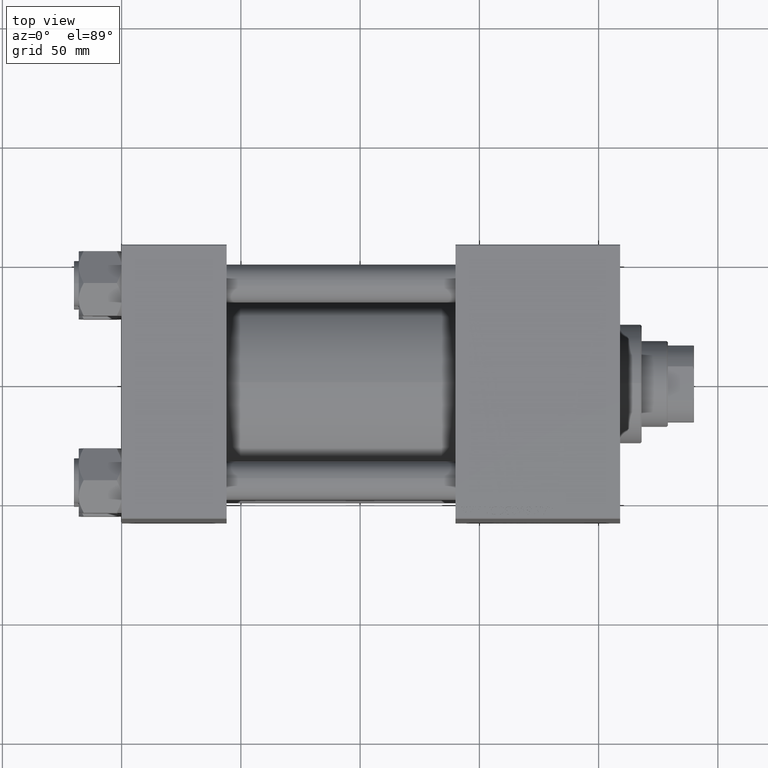
[diagram: clean part render]
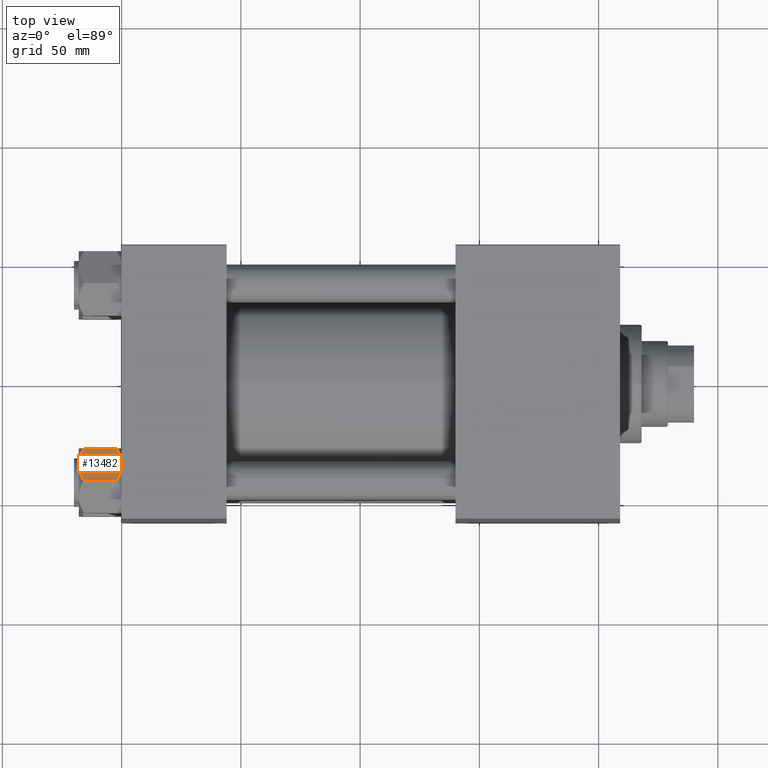
[diagram: same view with one face highlighted and labeled with its STEP entity id]
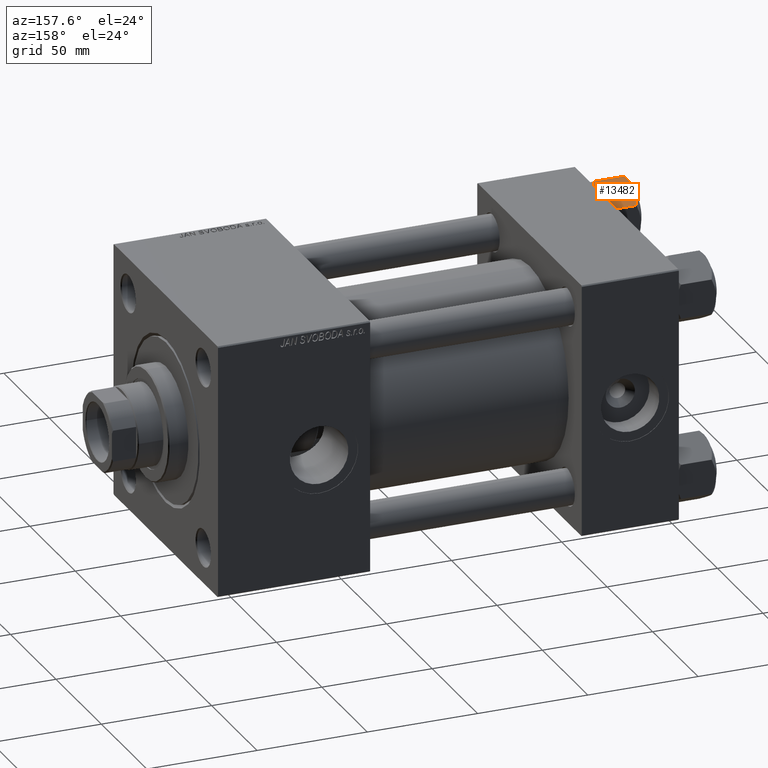
[diagram: same view with one face highlighted and labeled with its STEP entity id]
A machine part, top view. The second image highlights one B-rep face of the part: STEP entity #13482.
A second angle (auxiliary view) of the same face is appended — the face is thin or edge-on in the first view.
In plain terms, the highlighted planar face has unit normal (-0, -0.5, -0.866).
Its self-contained STEP definition (entity closure, byte-faithful):
#655 = ORIENTED_EDGE ( 'NONE', *, *, #21450, .F. ) ;
#1253 = LINE ( 'NONE', #49945, #50445 ) ;
#2468 = CARTESIAN_POINT ( 'NONE',  ( -11.38181071908714515, -7.340759166634855504, -17.99999999999998934 ) ) ;
#2630 = CARTESIAN_POINT ( 'NONE',  ( -7.809999999999999609, -13.52731680711293727, -18.00000000000000000 ) ) ;
#3428 = CARTESIAN_POINT ( 'NONE',  ( -9.124083218049237942, -11.25125790807803838, -0.9473872146228101698 ) ) ;
#3956 = EDGE_CURVE ( 'NONE', #35294, #18937, #33628, .T. ) ;
#3975 = VERTEX_POINT ( 'NONE', #37549 ) ;
#4791 = CARTESIAN_POINT ( 'NONE',  ( -11.71499999999999986, -6.763658403556454424, -18.00000000000000000 ) ) ;
#4845 = ORIENTED_EDGE ( 'NONE', *, *, #18324, .F. ) ;
#5882 = DIRECTION ( 'NONE',  ( -0.4999999999999994449, 0.8660254037844390407, 0.000000000000000000 ) ) ;
#6389 = CARTESIAN_POINT ( 'NONE',  ( -7.903528262322684128, -13.36532110482641400, -16.00000000000000000 ) ) ;
#6549 = CARTESIAN_POINT ( 'NONE',  ( -12.38621571200405391, -5.601078687526916511, -0.05089381635300645190 ) ) ;
#7335 = CARTESIAN_POINT ( 'NONE',  ( -9.439480280627259745, -10.70497417113492311, -0.7317196846281081024 ) ) ;
#7469 = ORIENTED_EDGE ( 'NONE', *, *, #37962, .F. ) ;
#10190 = DIRECTION ( 'NONE',  ( 0.4999999999999994449, -0.8660254037844390407, 0.000000000000000000 ) ) ;
#10367 = LINE ( 'NONE', #41812, #40959 ) ;
#11180 = DIRECTION ( 'NONE',  ( 0.8660254037844390407, 0.4999999999999994449, 0.000000000000000000 ) ) ;
#11513 = CARTESIAN_POINT ( 'NONE',  ( -8.202637790192643052, -12.84724820552771085, -1.706311779141444829 ) ) ;
#12688 = CARTESIAN_POINT ( 'NONE',  ( -15.61999999999999567, 8.023367828467702033E-15, -1.999999999999998224 ) ) ;
#13482 = ADVANCED_FACE ( 'NONE', ( #51010 ), #18243, .F. ) ;
#13870 = CARTESIAN_POINT ( 'NONE',  ( -14.92760668674625002, -1.199260397376427090, -1.411989271640064825 ) ) ;
#14090 = VECTOR ( 'NONE', #10190, 999.9999999999998863 ) ;
#14131 = CARTESIAN_POINT ( 'NONE',  ( -14.31545111198821552, -2.259544954993873311, -0.9142282604026915616 ) ) ;
#14746 = CARTESIAN_POINT ( 'NONE',  ( -10.38662926516872709, -9.064464007571841009, -17.75691532989870325 ) ) ;
#15434 = CARTESIAN_POINT ( 'NONE',  ( -7.903528262322684128, -13.36532110482641400, -16.00000000000000000 ) ) ;
#17647 = CARTESIAN_POINT ( 'NONE',  ( -8.502393313253762130, -12.32805640973646710, -16.58801072835992585 ) ) ;
#17896 = CARTESIAN_POINT ( 'NONE',  ( -11.71499999999999986, -6.763658403556454424, -18.00000000000000000 ) ) ;
#17982 = VECTOR ( 'NONE', #49761, 1000.000000000000000 ) ;
#18033 = CARTESIAN_POINT ( 'NONE',  ( -7.809999999999999609, -13.52731680711293727, -1.999999999999998224 ) ) ;
#18243 = PLANE ( 'NONE',  #27715 ) ;
#18299 = LINE ( 'NONE', #2630, #17982 ) ;
#18324 = EDGE_CURVE ( 'NONE', #18937, #31225, #1253, .T. ) ;
#18937 = VERTEX_POINT ( 'NONE', #42932 ) ;
#19379 = CARTESIAN_POINT ( 'NONE',  ( -8.506059550806618574, -12.32170630002230816, -1.434462921875002461 ) ) ;
#20445 = ORIENTED_EDGE ( 'NONE', *, *, #26577, .T. ) ;
#20492 = CARTESIAN_POINT ( 'NONE',  ( -13.02784502466562699, -4.489744118371577386, -17.80281335400754017 ) ) ;
#20497 = VERTEX_POINT ( 'NONE', #23716 ) ;
#20637 = VERTEX_POINT ( 'NONE', #30450 ) ;
#21066 = ORIENTED_EDGE ( 'NONE', *, *, #27669, .F. ) ;
#21450 = EDGE_CURVE ( 'NONE', #35751, #20497, #30007, .T. ) ;
#21576 = CARTESIAN_POINT ( 'NONE',  ( -10.06459418565413166, -9.622245127110597096, -17.61639331488793303 ) ) ;
#22079 = ORIENTED_EDGE ( 'NONE', *, *, #27942, .F. ) ;
#22094 = CARTESIAN_POINT ( 'NONE',  ( -11.04378428799595291, -7.926238119585994113, -17.94910618364698252 ) ) ;
#22286 = CARTESIAN_POINT ( 'NONE',  ( -14.92394044919338292, -1.205610507090625561, -16.56553707812498999 ) ) ;
#22784 = CARTESIAN_POINT ( 'NONE',  ( -13.36540581434588226, -3.905071680002305534, -0.3836066851120543686 ) ) ;
#23307 = CARTESIAN_POINT ( 'NONE',  ( -10.40215497533437805, -9.037572688741340343, -0.1971866459924474513 ) ) ;
#23716 = CARTESIAN_POINT ( 'NONE',  ( -7.809999999999999609, -13.52731680711293727, -1.999999999999998224 ) ) ;
#25452 = CARTESIAN_POINT ( 'NONE',  ( -14.30591678195075467, -2.276058899034888672, -17.05261278537718539 ) ) ;
#25766 = CARTESIAN_POINT ( 'NONE',  ( -7.809999999999999609, -13.52731680711293727, -16.00000000000000000 ) ) ;
#26060 = ORIENTED_EDGE ( 'NONE', *, *, #3956, .F. ) ;
#26345 = B_SPLINE_CURVE_WITH_KNOTS ( 'NONE', 3,
 ( #6389, #17647, #46456, #21576, #14746, #22094, #2468, #45427 ),
 .UNSPECIFIED., .F., .F.,
 ( 4, 2, 2, 4 ),
 ( 4.472842641823326580E-07, 0.003945636373369299649, 0.005918230917921855731, 0.007890825462474411814 ),
 .UNSPECIFIED. ) ;
#26577 = EDGE_CURVE ( 'NONE', #3975, #20497, #18299, .T. ) ;
#26870 = EDGE_LOOP ( 'NONE', ( #37298, #20445, #655, #22079, #21066, #7469, #4845, #26060, #40664, #41958 ) ) ;
#27498 = CARTESIAN_POINT ( 'NONE',  ( -7.903528262322674358, -13.36532110482643354, -2.000000000000000000 ) ) ;
#27669 = EDGE_CURVE ( 'NONE', #40573, #20637, #43959, .T. ) ;
#27673 = CARTESIAN_POINT ( 'NONE',  ( -15.52647173767732980, -0.1619957022864788043, -2.000000000000000000 ) ) ;
#27715 = AXIS2_PLACEMENT_3D ( 'NONE', #31109, #11180, #30836 ) ;
#27942 = EDGE_CURVE ( 'NONE', #20637, #35751, #50170, .T. ) ;
#29504 = CARTESIAN_POINT ( 'NONE',  ( -7.903528262322674358, -13.36532110482643354, -2.000000000000000000 ) ) ;
#30007 = LINE ( 'NONE', #45995, #30344 ) ;
#30344 = VECTOR ( 'NONE', #42057, 999.9999999999998863 ) ;
#30376 = CARTESIAN_POINT ( 'NONE',  ( -13.04337073483128329, -4.462852799541069615, -0.2430846701012900901 ) ) ;
#30450 = CARTESIAN_POINT ( 'NONE',  ( -11.71500000000000874, -6.763658403556459753, 0.000000000000000000 ) ) ;
#30836 = DIRECTION ( 'NONE',  ( -0.4999999999999993894, 0.8660254037844389297, 0.000000000000000000 ) ) ;
#31109 = CARTESIAN_POINT ( 'NONE',  ( -7.809999999999999609, -13.52731680711293727, -18.00000000000000000 ) ) ;
#31225 = VERTEX_POINT ( 'NONE', #12688 ) ;
#33628 = LINE ( 'NONE', #25766, #50768 ) ;
#35294 = VERTEX_POINT ( 'NONE', #38839 ) ;
#35751 = VERTEX_POINT ( 'NONE', #29504 ) ;
#36723 = CARTESIAN_POINT ( 'NONE',  ( -13.99051971937273464, -2.822342635978000391, -17.26828031537188224 ) ) ;
#37298 = ORIENTED_EDGE ( 'NONE', *, *, #40475, .F. ) ;
#37549 = CARTESIAN_POINT ( 'NONE',  ( -7.809999999999999609, -13.52731680711293727, -16.00000000000000000 ) ) ;
#37962 = EDGE_CURVE ( 'NONE', #31225, #40573, #46878, .T. ) ;
#38143 = DIRECTION ( 'NONE',  ( -0.000000000000000000, -0.000000000000000000, 1.000000000000000000 ) ) ;
#38839 = CARTESIAN_POINT ( 'NONE',  ( -15.52647173767731914, -0.1619957022864979002, -16.00000000000000000 ) ) ;
#40157 = CARTESIAN_POINT ( 'NONE',  ( -12.37702203890362362, -5.617002596445043849, -17.99999999999999645 ) ) ;
#40475 = EDGE_CURVE ( 'NONE', #3975, #51735, #10367, .T. ) ;
#40573 = VERTEX_POINT ( 'NONE', #27673 ) ;
#40664 = ORIENTED_EDGE ( 'NONE', *, *, #41105, .F. ) ;
#40755 = EDGE_CURVE ( 'NONE', #51735, #47788, #26345, .T. ) ;
#40959 = VECTOR ( 'NONE', #46790, 999.9999999999998863 ) ;
#41105 = EDGE_CURVE ( 'NONE', #47788, #35294, #47513, .T. ) ;
#41812 = CARTESIAN_POINT ( 'NONE',  ( -7.809999999999999609, -13.52731680711293727, -16.00000000000000000 ) ) ;
#41958 = ORIENTED_EDGE ( 'NONE', *, *, #40755, .F. ) ;
#42057 = DIRECTION ( 'NONE',  ( 0.4999999999999994449, -0.8660254037844390407, 0.000000000000000000 ) ) ;
#42457 = CARTESIAN_POINT ( 'NONE',  ( -15.52647173767731914, -0.1619957022864979002, -16.00000000000000000 ) ) ;
#42694 = CARTESIAN_POINT ( 'NONE',  ( -15.52647173767732980, -0.1619957022864788043, -2.000000000000000000 ) ) ;
#42932 = CARTESIAN_POINT ( 'NONE',  ( -15.61999999999999567, 8.023367828467702033E-15, -16.00000000000000000 ) ) ;
#43213 = CARTESIAN_POINT ( 'NONE',  ( -11.05297796109637787, -7.910314210667872103, 9.086969458144130882E-15 ) ) ;
#43959 = B_SPLINE_CURVE_WITH_KNOTS ( 'NONE', 3,
 ( #42694, #13870, #14131, #22784, #30376, #6549, #46625, #49770 ),
 .UNSPECIFIED., .F., .F.,
 ( 4, 2, 2, 4 ),
 ( 4.472842641982724416E-07, 0.003945636373369324802, 0.005918230917921887824, 0.007890825462474451713 ),
 .UNSPECIFIED. ) ;
#45427 = CARTESIAN_POINT ( 'NONE',  ( -11.71499999999999986, -6.763658403556454424, -18.00000000000000000 ) ) ;
#45995 = CARTESIAN_POINT ( 'NONE',  ( -7.809999999999999609, -13.52731680711293727, -1.999999999999998224 ) ) ;
#46456 = CARTESIAN_POINT ( 'NONE',  ( -9.114548888011793082, -11.26777185211902399, -17.08577173959729834 ) ) ;
#46625 = CARTESIAN_POINT ( 'NONE',  ( -12.04818928091285635, -6.186557640478051567, 9.103910117089220044E-15 ) ) ;
#46790 = DIRECTION ( 'NONE',  ( -0.4999999999999994449, 0.8660254037844390407, 0.000000000000000000 ) ) ;
#46878 = LINE ( 'NONE', #18033, #14090 ) ;
#47513 = B_SPLINE_CURVE_WITH_KNOTS ( 'NONE', 3,
 ( #4791, #40157, #20492, #36723, #25452, #22286, #49296, #42457 ),
 .UNSPECIFIED., .F., .F.,
 ( 4, 2, 2, 4 ),
 ( 0.007890825462474411814, 0.01181022244528552416, 0.01376992093669107860, 0.01572961942809663477 ),
 .UNSPECIFIED. ) ;
#47678 = CARTESIAN_POINT ( 'NONE',  ( -11.71500000000000874, -6.763658403556459753, 0.000000000000000000 ) ) ;
#47788 = VERTEX_POINT ( 'NONE', #17896 ) ;
#49296 = CARTESIAN_POINT ( 'NONE',  ( -15.22736220980735489, -0.6800686015852174249, -16.29368822085854873 ) ) ;
#49761 = DIRECTION ( 'NONE',  ( -0.000000000000000000, -0.000000000000000000, 1.000000000000000000 ) ) ;
#49770 = CARTESIAN_POINT ( 'NONE',  ( -11.71500000000000874, -6.763658403556459753, 0.000000000000000000 ) ) ;
#49945 = CARTESIAN_POINT ( 'NONE',  ( -15.61999999999999567, 8.023367828467702033E-15, -18.00000000000000000 ) ) ;
#50170 = B_SPLINE_CURVE_WITH_KNOTS ( 'NONE', 3,
 ( #47678, #43213, #23307, #7335, #3428, #19379, #11513, #27498 ),
 .UNSPECIFIED., .F., .F.,
 ( 4, 2, 2, 4 ),
 ( 0.007890825462474451713, 0.01181022244528557794, 0.01376992093669113758, 0.01572961942809669722 ),
 .UNSPECIFIED. ) ;
#50445 = VECTOR ( 'NONE', #38143, 1000.000000000000000 ) ;
#50768 = VECTOR ( 'NONE', #5882, 999.9999999999998863 ) ;
#51010 = FACE_OUTER_BOUND ( 'NONE', #26870, .T. ) ;
#51735 = VERTEX_POINT ( 'NONE', #15434 ) ;